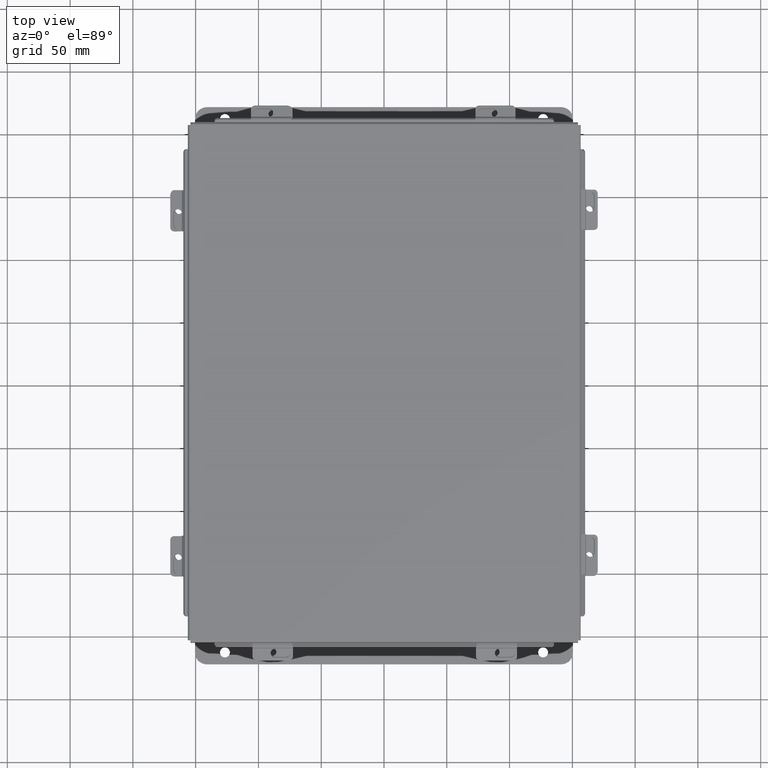
[diagram: clean part render]
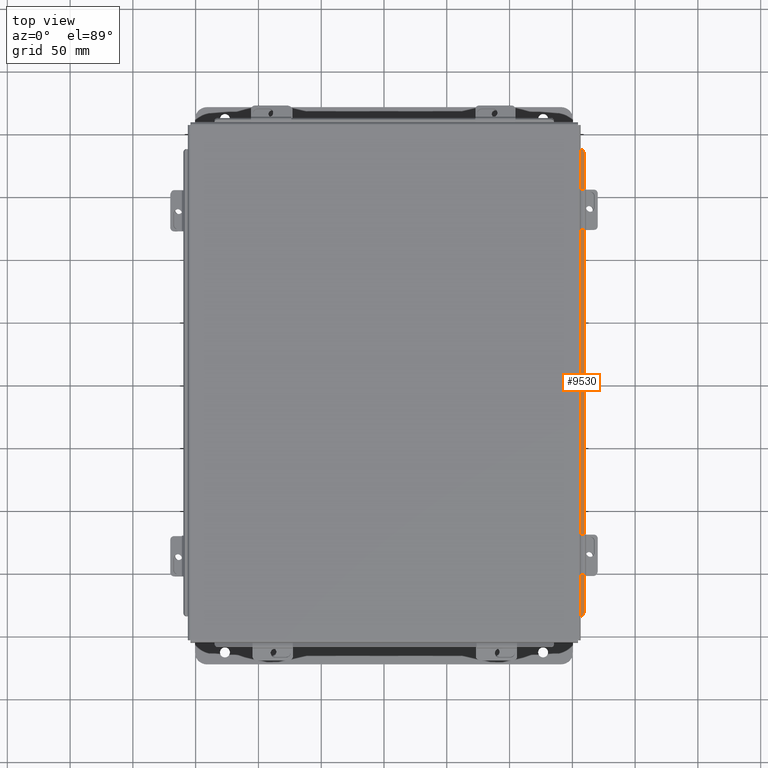
[diagram: same view with one face highlighted and labeled with its STEP entity id]
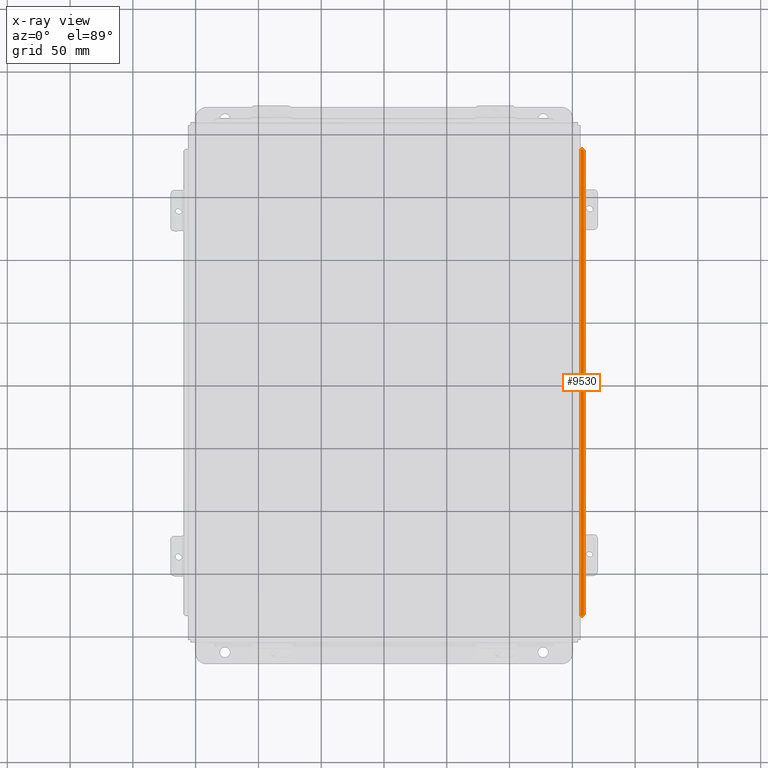
[diagram: x-ray of the same camera — body ghosted, the highlighted face saturated]
A machine part, top view. The second image highlights one B-rep face of the part: STEP entity #9530.
The next image is the same camera in x-ray: the body ghosted, the highlighted face saturated — about 0% of this face is hidden behind the body in this view.
In plain terms, the highlighted planar face has unit normal (-0.5, -0, 0.866).
Its self-contained STEP definition (entity closure, byte-faithful):
#154 = CARTESIAN_POINT ( 'NONE',  ( -6.156250000000021300, -7.324478932188125800, 0.6122999999999994000 ) ) ;
#372 = VECTOR ( 'NONE', #6590, 39.37007874015748900 ) ;
#630 = CARTESIAN_POINT ( 'NONE',  ( -6.169750000000020900, -7.324478932188125800, 0.6045057713659404100 ) ) ;
#731 = ORIENTED_EDGE ( 'NONE', *, *, #7624, .F. ) ;
#1048 = VECTOR ( 'NONE', #4726, 39.37007874015748100 ) ;
#1233 = ORIENTED_EDGE ( 'NONE', *, *, #4216, .F. ) ;
#1298 = LINE ( 'NONE', #630, #1048 ) ;
#1540 = CARTESIAN_POINT ( 'NONE',  ( -6.169750000000020900, -7.324478932188125000, 0.6045057713659393000 ) ) ;
#1619 = CARTESIAN_POINT ( 'NONE',  ( -6.174103810567687300, 7.224478932188144000, 0.6019920976626971200 ) ) ;
#1627 = PLANE ( 'NONE',  #3497 ) ;
#1823 = VERTEX_POINT ( 'NONE', #5186 ) ;
#2172 = ORIENTED_EDGE ( 'NONE', *, *, #4507, .T. ) ;
#2208 = FACE_OUTER_BOUND ( 'NONE', #8466, .T. ) ;
#2359 = EDGE_CURVE ( 'NONE', #3420, #3189, #9058, .T. ) ;
#3034 = VECTOR ( 'NONE', #4391, 39.37007874015748900 ) ;
#3189 = VERTEX_POINT ( 'NONE', #7245 ) ;
#3403 = ORIENTED_EDGE ( 'NONE', *, *, #2359, .T. ) ;
#3420 = VERTEX_POINT ( 'NONE', #8648 ) ;
#3497 = AXIS2_PLACEMENT_3D ( 'NONE', #6018, #8367, #3821 ) ;
#3729 = CIRCLE ( 'NONE', #5080, 0.1000000000000008800 ) ;
#3821 = DIRECTION ( 'NONE',  ( -0.8660254037844379300, -1.212873641777300900E-029, -0.5000000000000014400 ) ) ;
#4216 = EDGE_CURVE ( 'NONE', #3420, #5888, #8556, .T. ) ;
#4356 = EDGE_CURVE ( 'NONE', #7644, #5774, #1298, .T. ) ;
#4391 = DIRECTION ( 'NONE',  ( -0.8660254037844371500, -1.210408451448484800E-029, -0.5000000000000023300 ) ) ;
#4507 = EDGE_CURVE ( 'NONE', #1823, #5888, #3729, .T. ) ;
#4726 = DIRECTION ( 'NONE',  ( 3.158965297603354800E-030, 1.000000000000000000, -2.237850380038923400E-016 ) ) ;
#5080 = AXIS2_PLACEMENT_3D ( 'NONE', #9626, #8785, #7078 ) ;
#5182 = VECTOR ( 'NONE', #7888, 39.37007874015748100 ) ;
#5186 = CARTESIAN_POINT ( 'NONE',  ( -6.174103810567687300, -7.324478932188125800, 0.6019920976626971200 ) ) ;
#5277 = DIRECTION ( 'NONE',  ( -0.8660254037844392600, 0.0000000000000000000, -0.4999999999999991700 ) ) ;
#5774 = VERTEX_POINT ( 'NONE', #9675 ) ;
#5888 = VERTEX_POINT ( 'NONE', #6696 ) ;
#6018 = CARTESIAN_POINT ( 'NONE',  ( -1.804196177368621900, 0.0000000000000000000, 3.124959446023990700 ) ) ;
#6198 = DIRECTION ( 'NONE',  ( 0.5000000000000014400, -1.451997103672419000E-029, -0.8660254037844378200 ) ) ;
#6590 = DIRECTION ( 'NONE',  ( 0.8660254037844377100, 1.212873641777300500E-029, 0.5000000000000013300 ) ) ;
#6629 = ORIENTED_EDGE ( 'NONE', *, *, #4356, .F. ) ;
#6696 = CARTESIAN_POINT ( 'NONE',  ( -6.260706350946130700, -7.224478932188126200, 0.5519920976626973000 ) ) ;
#7042 = CARTESIAN_POINT ( 'NONE',  ( -6.260706350946130700, 7.324478932188143600, 0.5519920976626973000 ) ) ;
#7078 = DIRECTION ( 'NONE',  ( -0.8660254037844392600, 0.0000000000000000000, -0.4999999999999991700 ) ) ;
#7110 = LINE ( 'NONE', #7042, #3034 ) ;
#7245 = CARTESIAN_POINT ( 'NONE',  ( -6.174103810567687300, 7.324478932188143600, 0.6019920976626971200 ) ) ;
#7624 = EDGE_CURVE ( 'NONE', #1823, #7644, #7684, .T. ) ;
#7644 = VERTEX_POINT ( 'NONE', #1540 ) ;
#7684 = LINE ( 'NONE', #154, #372 ) ;
#7798 = EDGE_CURVE ( 'NONE', #5774, #3189, #7110, .T. ) ;
#7888 = DIRECTION ( 'NONE',  ( -3.166671605124525800E-030, -1.000000000000000000, -1.853823127269377700E-029 ) ) ;
#8001 = AXIS2_PLACEMENT_3D ( 'NONE', #1619, #6198, #5277 ) ;
#8367 = DIRECTION ( 'NONE',  ( 0.5000000000000014400, -1.451997103672419200E-029, -0.8660254037844379300 ) ) ;
#8466 = EDGE_LOOP ( 'NONE', ( #731, #2172, #1233, #3403, #8593, #6629 ) ) ;
#8556 = LINE ( 'NONE', #9480, #5182 ) ;
#8593 = ORIENTED_EDGE ( 'NONE', *, *, #7798, .F. ) ;
#8648 = CARTESIAN_POINT ( 'NONE',  ( -6.260706350946130700, 7.224478932188144000, 0.5519920976626973000 ) ) ;
#8785 = DIRECTION ( 'NONE',  ( 0.5000000000000014400, -1.451997103672419000E-029, -0.8660254037844378200 ) ) ;
#9058 = CIRCLE ( 'NONE', #8001, 0.1000000000000008800 ) ;
#9480 = CARTESIAN_POINT ( 'NONE',  ( -6.260706350946130700, -7.324478932188125800, 0.5519920976626973000 ) ) ;
#9530 = ADVANCED_FACE ( 'NONE', ( #2208 ), #1627, .T. ) ;
#9626 = CARTESIAN_POINT ( 'NONE',  ( -6.174103810567687300, -7.224478932188126200, 0.6019920976626971200 ) ) ;
#9675 = CARTESIAN_POINT ( 'NONE',  ( -6.169750000000020900, 7.324478932188144500, 0.6045057713659393000 ) ) ;